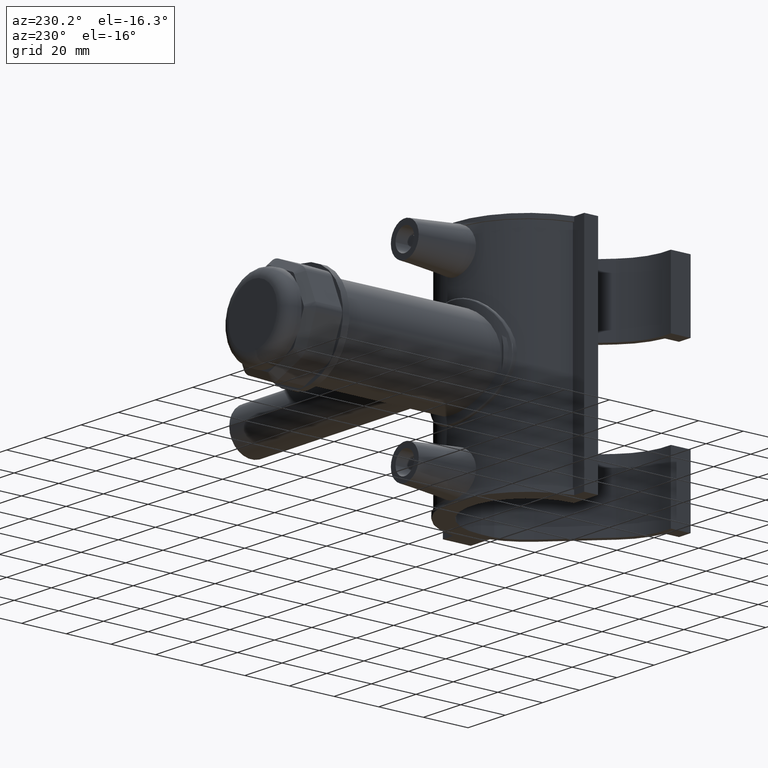
[diagram: clean part render]
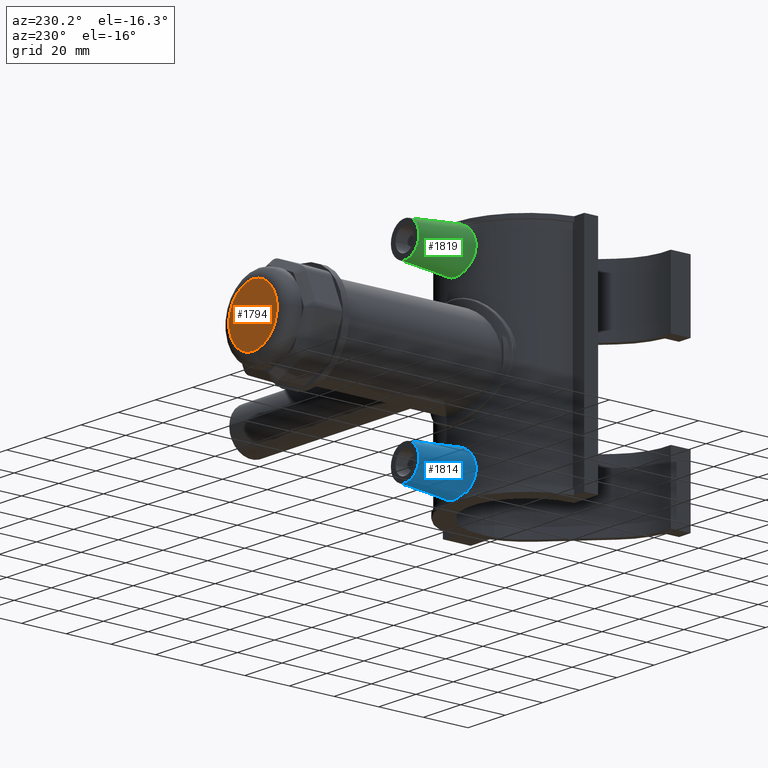
[diagram: same view with three faces highlighted in distinct colors, each labeled with its STEP entity id]
A machine part, auxiliary view with three faces highlighted in distinct colors.
Their STEP definitions:

[orange] entity #1794 — the highlighted planar face has unit normal (0, 1, 0).
#451=FACE_OUTER_BOUND('',#570,.T.);
#570=EDGE_LOOP('',(#1355));
#689=CIRCLE('',#1949,13.);
#811=VERTEX_POINT('',#3066);
#1019=EDGE_CURVE('',#811,#811,#689,.T.);
#1355=ORIENTED_EDGE('',*,*,#1019,.F.);
#1708=PLANE('',#1952);
#1794=ADVANCED_FACE('',(#451),#1708,.T.);
#1949=AXIS2_PLACEMENT_3D('',#3067,#2286,#2287);
#1952=AXIS2_PLACEMENT_3D('',#3070,#2292,#2293);
#2286=DIRECTION('center_axis',(0.,-1.,-3.06161699786838E-16));
#2287=DIRECTION('ref_axis',(6.12323399573677E-17,3.06161699786838E-16,-1.));
#2292=DIRECTION('center_axis',(0.,1.,3.06161699786838E-16));
#2293=DIRECTION('ref_axis',(0.,0.,1.));
#3066=CARTESIAN_POINT('',(-2.38806125833734E-15,123.,13.));
#3067=CARTESIAN_POINT('Origin',(0.,123.,3.00038465791102E-14));
#3070=CARTESIAN_POINT('Origin',(0.,123.,3.00038465791102E-14));

[blue] entity #1814 — the highlighted conical surface has half-angle 5 deg.
#17=(
BOUNDED_CURVE()
B_SPLINE_CURVE(2,(#3316,#3317,#3318),.UNSPECIFIED.,.F.,.F.)
B_SPLINE_CURVE_WITH_KNOTS((3,3),(0.0398167831127246,0.108912894583564),
 .UNSPECIFIED.)
CURVE()
GEOMETRIC_REPRESENTATION_ITEM()
RATIONAL_B_SPLINE_CURVE((1.00004891007162,1.00008159279205,1.00008041755351))
REPRESENTATION_ITEM('')
);
#18=(
BOUNDED_CURVE()
B_SPLINE_CURVE(2,(#3327,#3328,#3329),.UNSPECIFIED.,.F.,.F.)
B_SPLINE_CURVE_WITH_KNOTS((3,3),(0.104116125051706,0.173212236522546),
 .UNSPECIFIED.)
CURVE()
GEOMETRIC_REPRESENTATION_ITEM()
RATIONAL_B_SPLINE_CURVE((1.00008041755351,1.00008159279205,1.00004891007162))
REPRESENTATION_ITEM('')
);
#328=CONICAL_SURFACE('',#1982,7.5,5.);
#342=FACE_BOUND('',#595,.T.);
#371=B_SPLINE_CURVE_WITH_KNOTS('',3,(#3336,#3337,#3338,#3339,#3340,#3341,
#3342,#3343,#3344,#3345),.UNSPECIFIED.,.F.,.F.,(4,2,2,2,4),(3.80240147731351,
3.9501428370638,4.30858013206433,4.66701742706485,4.81475878681515),
 .UNSPECIFIED.);
#372=B_SPLINE_CURVE_WITH_KNOTS('',3,(#3365,#3366,#3367,#3368,#3369,#3370,
#3371,#3372,#3373,#3374,#3375,#3376,#3377,#3378,#3379,#3380,#3381,#3382,
#3383,#3384,#3385,#3386,#3387,#3388),.UNSPECIFIED.,.F.,.F.,(4,2,2,2,2,2,
2,2,2,2,2,4),(0.,0.362047899468712,0.724095798937425,1.08486680070372,1.44563780247002,
1.80640880423631,2.16717980600261,2.52922770547132,2.89127560494004,3.25332350440875,
3.61537140387746,3.81859572748109),.UNSPECIFIED.);
#373=B_SPLINE_CURVE_WITH_KNOTS('',3,(#3389,#3390,#3391,#3392,#3393,#3394,
#3395,#3396),.UNSPECIFIED.,.F.,.F.,(4,2,2,4),(4.85523108733587,5.05845541094265,
5.42050331041136,5.78255120988007),.UNSPECIFIED.);
#471=FACE_OUTER_BOUND('',#594,.T.);
#594=EDGE_LOOP('',(#1451,#1452,#1453,#1454,#1455));
#595=EDGE_LOOP('',(#1456));
#702=CIRCLE('',#1983,7.5);
#821=VERTEX_POINT('',#3314);
#822=VERTEX_POINT('',#3315);
#825=VERTEX_POINT('',#3325);
#826=VERTEX_POINT('',#3326);
#836=VERTEX_POINT('',#3364);
#837=VERTEX_POINT('',#3397);
#1041=EDGE_CURVE('',#821,#822,#17,.T.);
#1045=EDGE_CURVE('',#825,#826,#18,.T.);
#1049=EDGE_CURVE('',#826,#821,#371,.T.);
#1059=EDGE_CURVE('',#836,#822,#372,.T.);
#1060=EDGE_CURVE('',#825,#836,#373,.T.);
#1061=EDGE_CURVE('',#837,#837,#702,.T.);
#1451=ORIENTED_EDGE('',*,*,#1045,.T.);
#1452=ORIENTED_EDGE('',*,*,#1049,.T.);
#1453=ORIENTED_EDGE('',*,*,#1041,.T.);
#1454=ORIENTED_EDGE('',*,*,#1059,.F.);
#1455=ORIENTED_EDGE('',*,*,#1060,.F.);
#1456=ORIENTED_EDGE('',*,*,#1061,.T.);
#1814=ADVANCED_FACE('',(#471,#342),#328,.T.);
#1982=AXIS2_PLACEMENT_3D('',#3363,#2373,#2374);
#1983=AXIS2_PLACEMENT_3D('',#3398,#2375,#2376);
#2373=DIRECTION('center_axis',(0.,-1.,0.));
#2374=DIRECTION('ref_axis',(1.,0.,0.));
#2375=DIRECTION('center_axis',(0.,-1.,0.));
#2376=DIRECTION('ref_axis',(1.,0.,0.));
#3314=CARTESIAN_POINT('',(-5.02092243298948,32.7675577045636,-48.));
#3315=CARTESIAN_POINT('',(-5.13117896250066,32.0923823119255,-48.));
#3316=CARTESIAN_POINT('Ctrl Pts',(-5.02092243298948,32.7675577045636,-48.));
#3317=CARTESIAN_POINT('Ctrl Pts',(-5.0758788472321,32.4336363671915,-48.));
#3318=CARTESIAN_POINT('Ctrl Pts',(-5.13117896250066,32.0923823119255,-48.));
#3325=CARTESIAN_POINT('',(5.13117896250066,32.0923823119255,-48.));
#3326=CARTESIAN_POINT('',(5.02092243298948,32.7675577045636,-48.));
#3327=CARTESIAN_POINT('Ctrl Pts',(5.13117896250066,32.0923823119255,-48.));
#3328=CARTESIAN_POINT('Ctrl Pts',(5.07587884723165,32.4336363671944,-48.));
#3329=CARTESIAN_POINT('Ctrl Pts',(5.02092243298948,32.7675577045636,-48.));
#3336=CARTESIAN_POINT('Ctrl Pts',(5.02092243298948,32.7675577045636,-48.));
#3337=CARTESIAN_POINT('Ctrl Pts',(4.58214950446323,32.8347902050657,-48.2684360086521));
#3338=CARTESIAN_POINT('Ctrl Pts',(4.11687674288014,32.8969405100926,-48.5039883418409));
#3339=CARTESIAN_POINT('Ctrl Pts',(2.46648320527563,33.0790175940415,-49.1762993128722));
#3340=CARTESIAN_POINT('Ctrl Pts',(1.19479098333509,33.15,-49.4116272980414));
#3341=CARTESIAN_POINT('Ctrl Pts',(-1.19479098333509,33.15,-49.4116272980414));
#3342=CARTESIAN_POINT('Ctrl Pts',(-2.46648320527563,33.0790175940415,-49.1762993128723));
#3343=CARTESIAN_POINT('Ctrl Pts',(-4.11687674288014,32.8969405100927,-48.5039883418409));
#3344=CARTESIAN_POINT('Ctrl Pts',(-4.58214950446323,32.8347902050657,-48.2684360086521));
#3345=CARTESIAN_POINT('Ctrl Pts',(-5.02092243298948,32.7675577045636,-48.));
#3363=CARTESIAN_POINT('Origin',(0.,55.,-40.));
#3364=CARTESIAN_POINT('',(9.59524244594183,31.0512692559193,-40.));
#3365=CARTESIAN_POINT('Ctrl Pts',(9.59524244594183,31.0512692559193,-40.));
#3366=CARTESIAN_POINT('Ctrl Pts',(9.59524244594183,31.0512692559193,-38.7931736684376));
#3367=CARTESIAN_POINT('Ctrl Pts',(9.3470231898562,31.1311666751305,-37.5134816777897));
#3368=CARTESIAN_POINT('Ctrl Pts',(8.35380569471185,31.412263489831,-35.1737633631997));
#3369=CARTESIAN_POINT('Ctrl Pts',(7.60928976109968,31.6086786532308,-34.1129600502947));
#3370=CARTESIAN_POINT('Ctrl Pts',(5.90699332981886,31.9704853933175,-32.446684726768));
#3371=CARTESIAN_POINT('Ctrl Pts',(4.83429941664471,32.1602272677186,-31.7260732041943));
#3372=CARTESIAN_POINT('Ctrl Pts',(2.48234605122766,32.4266653583976,-30.76831513355));
#3373=CARTESIAN_POINT('Ctrl Pts',(1.20257000588766,32.5,-30.5315050706667));
#3374=CARTESIAN_POINT('Ctrl Pts',(-1.20257000588765,32.5,-30.5315050706667));
#3375=CARTESIAN_POINT('Ctrl Pts',(-2.48234605122766,32.4266653583976,-30.76831513355));
#3376=CARTESIAN_POINT('Ctrl Pts',(-4.83429941664471,32.1602272677186,-31.7260732041943));
#3377=CARTESIAN_POINT('Ctrl Pts',(-5.90699332981886,31.9704853933175,-32.446684726768));
#3378=CARTESIAN_POINT('Ctrl Pts',(-7.60928976109968,31.6086786532308,-34.1129600502947));
#3379=CARTESIAN_POINT('Ctrl Pts',(-8.35380569471185,31.412263489831,-35.1737633631997));
#3380=CARTESIAN_POINT('Ctrl Pts',(-9.3470231898562,31.1311666751305,-37.5134816777897));
#3381=CARTESIAN_POINT('Ctrl Pts',(-9.59524244594183,31.0512692559193,-38.7931736684376));
#3382=CARTESIAN_POINT('Ctrl Pts',(-9.59524244594183,31.0512692559193,-41.2068263315624));
#3383=CARTESIAN_POINT('Ctrl Pts',(-9.3470231898562,31.1311666751305,-42.4865183222104));
#3384=CARTESIAN_POINT('Ctrl Pts',(-8.35380569471185,31.412263489831,-44.8262366368003));
#3385=CARTESIAN_POINT('Ctrl Pts',(-7.60928976109968,31.6086786532308,-45.8870399497053));
#3386=CARTESIAN_POINT('Ctrl Pts',(-6.27802838097515,31.8916254604351,-47.1901314360668));
#3387=CARTESIAN_POINT('Ctrl Pts',(-5.73018665567346,31.9966083165979,-47.6257526220462));
#3388=CARTESIAN_POINT('Ctrl Pts',(-5.13117896251543,32.0923823119232,-47.9999999999908));
#3389=CARTESIAN_POINT('Ctrl Pts',(5.13117896248757,32.0923823119276,-48.0000000000082));
#3390=CARTESIAN_POINT('Ctrl Pts',(5.73018665565645,31.9966083166012,-47.6257526220596));
#3391=CARTESIAN_POINT('Ctrl Pts',(6.27802838096772,31.8916254604366,-47.1901314360741));
#3392=CARTESIAN_POINT('Ctrl Pts',(7.60928976109968,31.6086786532308,-45.8870399497053));
#3393=CARTESIAN_POINT('Ctrl Pts',(8.35380569471185,31.412263489831,-44.8262366368003));
#3394=CARTESIAN_POINT('Ctrl Pts',(9.3470231898562,31.1311666751305,-42.4865183222104));
#3395=CARTESIAN_POINT('Ctrl Pts',(9.59524244594183,31.0512692559193,-41.2068263315624));
#3396=CARTESIAN_POINT('Ctrl Pts',(9.59524244594183,31.0512692559193,-40.));
#3397=CARTESIAN_POINT('',(-7.5,55.,-40.));
#3398=CARTESIAN_POINT('Origin',(0.,55.,-40.));

[green] entity #1819 — the highlighted conical surface has half-angle 5 deg.
#19=(
BOUNDED_CURVE()
B_SPLINE_CURVE(2,(#3402,#3403,#3404),.UNSPECIFIED.,.F.,.F.)
B_SPLINE_CURVE_WITH_KNOTS((3,3),(0.0398167831126664,0.108912894583584),
 .UNSPECIFIED.)
CURVE()
GEOMETRIC_REPRESENTATION_ITEM()
RATIONAL_B_SPLINE_CURVE((1.00004891007262,1.00008159279373,1.00008041755517))
REPRESENTATION_ITEM('')
);
#20=(
BOUNDED_CURVE()
B_SPLINE_CURVE(2,(#3410,#3411,#3412),.UNSPECIFIED.,.F.,.F.)
B_SPLINE_CURVE_WITH_KNOTS((3,3),(0.104116125051685,0.173212236522602),
 .UNSPECIFIED.)
CURVE()
GEOMETRIC_REPRESENTATION_ITEM()
RATIONAL_B_SPLINE_CURVE((1.00008041755517,1.00008159279373,1.00004891007262))
REPRESENTATION_ITEM('')
);
#329=CONICAL_SURFACE('',#1993,7.5,5.);
#343=FACE_BOUND('',#601,.T.);
#374=B_SPLINE_CURVE_WITH_KNOTS('',3,(#3419,#3420,#3421,#3422,#3423,#3424,
#3425,#3426,#3427,#3428),.UNSPECIFIED.,.F.,.F.,(4,2,2,2,4),(3.80240147731351,
3.9501428370638,4.30858013206433,4.66701742706485,4.81475878681515),
 .UNSPECIFIED.);
#375=B_SPLINE_CURVE_WITH_KNOTS('',3,(#3441,#3442,#3443,#3444,#3445,#3446,
#3447,#3448),.UNSPECIFIED.,.F.,.F.,(4,2,2,4),(2.89127560494004,3.25332350440875,
3.61537140387746,3.81859572748109),.UNSPECIFIED.);
#376=B_SPLINE_CURVE_WITH_KNOTS('',3,(#3449,#3450,#3451,#3452,#3453,#3454,
#3455,#3456,#3457,#3458,#3459,#3460,#3461,#3462,#3463,#3464,#3465,#3466,
#3467,#3468,#3469,#3470,#3471,#3472,#3473),.UNSPECIFIED.,.F.,.F.,(4,2,2,
3,2,2,2,2,2,2,2,4),(4.85523108733587,5.05845541094265,5.42050331041136,
5.78255120988007,6.14459910934878,6.5066470088175,6.86741801058379,7.22818901235009,
7.58896001411639,7.94973101588268,8.3117789153514,8.67382681482011),
 .UNSPECIFIED.);
#476=FACE_OUTER_BOUND('',#600,.T.);
#600=EDGE_LOOP('',(#1479,#1480,#1481,#1482,#1483));
#601=EDGE_LOOP('',(#1484));
#708=CIRCLE('',#1994,7.5);
#838=VERTEX_POINT('',#3400);
#839=VERTEX_POINT('',#3401);
#840=VERTEX_POINT('',#3408);
#841=VERTEX_POINT('',#3409);
#847=VERTEX_POINT('',#3440);
#848=VERTEX_POINT('',#3474);
#1062=EDGE_CURVE('',#838,#839,#19,.T.);
#1065=EDGE_CURVE('',#840,#841,#20,.T.);
#1069=EDGE_CURVE('',#841,#838,#374,.T.);
#1076=EDGE_CURVE('',#847,#839,#375,.T.);
#1077=EDGE_CURVE('',#840,#847,#376,.T.);
#1078=EDGE_CURVE('',#848,#848,#708,.T.);
#1479=ORIENTED_EDGE('',*,*,#1065,.T.);
#1480=ORIENTED_EDGE('',*,*,#1069,.T.);
#1481=ORIENTED_EDGE('',*,*,#1062,.T.);
#1482=ORIENTED_EDGE('',*,*,#1076,.F.);
#1483=ORIENTED_EDGE('',*,*,#1077,.F.);
#1484=ORIENTED_EDGE('',*,*,#1078,.F.);
#1819=ADVANCED_FACE('',(#476,#343),#329,.T.);
#1993=AXIS2_PLACEMENT_3D('',#3439,#2401,#2402);
#1994=AXIS2_PLACEMENT_3D('',#3475,#2403,#2404);
#2401=DIRECTION('center_axis',(0.,-1.,0.));
#2402=DIRECTION('ref_axis',(1.,0.,0.));
#2403=DIRECTION('center_axis',(0.,1.,0.));
#2404=DIRECTION('ref_axis',(1.,0.,0.));
#3400=CARTESIAN_POINT('',(5.02092243298948,32.7675577045636,48.));
#3401=CARTESIAN_POINT('',(5.13117896250066,32.0923823119255,48.));
#3402=CARTESIAN_POINT('Ctrl Pts',(5.02092243298948,32.7675577045636,48.));
#3403=CARTESIAN_POINT('Ctrl Pts',(5.07587884723213,32.4336363671914,48.));
#3404=CARTESIAN_POINT('Ctrl Pts',(5.13117896250066,32.0923823119255,48.));
#3408=CARTESIAN_POINT('',(-5.13117896250066,32.0923823119255,48.));
#3409=CARTESIAN_POINT('',(-5.02092243298948,32.7675577045636,48.));
#3410=CARTESIAN_POINT('Ctrl Pts',(-5.13117896250066,32.0923823119255,48.));
#3411=CARTESIAN_POINT('Ctrl Pts',(-5.07587884723168,32.4336363671942,48.));
#3412=CARTESIAN_POINT('Ctrl Pts',(-5.02092243298948,32.7675577045636,48.));
#3419=CARTESIAN_POINT('Ctrl Pts',(-5.02092243298948,32.7675577045636,48.));
#3420=CARTESIAN_POINT('Ctrl Pts',(-4.58214950446323,32.8347902050657,48.2684360086521));
#3421=CARTESIAN_POINT('Ctrl Pts',(-4.11687674288014,32.8969405100926,48.5039883418409));
#3422=CARTESIAN_POINT('Ctrl Pts',(-2.46648320527564,33.0790175940415,49.1762993128723));
#3423=CARTESIAN_POINT('Ctrl Pts',(-1.19479098333509,33.15,49.4116272980414));
#3424=CARTESIAN_POINT('Ctrl Pts',(1.19479098333508,33.15,49.4116272980414));
#3425=CARTESIAN_POINT('Ctrl Pts',(2.46648320527563,33.0790175940415,49.1762993128723));
#3426=CARTESIAN_POINT('Ctrl Pts',(4.11687674288014,32.8969405100926,48.5039883418409));
#3427=CARTESIAN_POINT('Ctrl Pts',(4.58214950446323,32.8347902050657,48.2684360086521));
#3428=CARTESIAN_POINT('Ctrl Pts',(5.02092243298948,32.7675577045636,48.));
#3439=CARTESIAN_POINT('Origin',(0.,55.,40.));
#3440=CARTESIAN_POINT('',(9.59524244594183,31.0512692559193,40.));
#3441=CARTESIAN_POINT('Ctrl Pts',(9.59524244594183,31.0512692559193,40.));
#3442=CARTESIAN_POINT('Ctrl Pts',(9.59524244594183,31.0512692559193,41.2068263315624));
#3443=CARTESIAN_POINT('Ctrl Pts',(9.3470231898562,31.1311666751305,42.4865183222104));
#3444=CARTESIAN_POINT('Ctrl Pts',(8.35380569471185,31.412263489831,44.8262366368003));
#3445=CARTESIAN_POINT('Ctrl Pts',(7.60928976109968,31.6086786532308,45.8870399497053));
#3446=CARTESIAN_POINT('Ctrl Pts',(6.27802838097515,31.8916254604351,47.1901314360668));
#3447=CARTESIAN_POINT('Ctrl Pts',(5.73018665567347,31.9966083165979,47.6257526220462));
#3448=CARTESIAN_POINT('Ctrl Pts',(5.13117896251544,32.0923823119232,47.9999999999908));
#3449=CARTESIAN_POINT('Ctrl Pts',(-5.13117896248756,32.0923823119276,48.0000000000082));
#3450=CARTESIAN_POINT('Ctrl Pts',(-5.73018665565644,31.9966083166012,47.6257526220596));
#3451=CARTESIAN_POINT('Ctrl Pts',(-6.27802838096772,31.8916254604366,47.1901314360741));
#3452=CARTESIAN_POINT('Ctrl Pts',(-7.60928976109968,31.6086786532308,45.8870399497053));
#3453=CARTESIAN_POINT('Ctrl Pts',(-8.35380569471185,31.412263489831,44.8262366368003));
#3454=CARTESIAN_POINT('Ctrl Pts',(-9.3470231898562,31.1311666751305,42.4865183222104));
#3455=CARTESIAN_POINT('Ctrl Pts',(-9.59524244594183,31.0512692559193,41.2068263315624));
#3456=CARTESIAN_POINT('Ctrl Pts',(-9.59524244594183,31.0512692559193,40.));
#3457=CARTESIAN_POINT('Ctrl Pts',(-9.59524244594183,31.0512692559193,38.7931736684376));
#3458=CARTESIAN_POINT('Ctrl Pts',(-9.3470231898562,31.1311666751305,37.5134816777897));
#3459=CARTESIAN_POINT('Ctrl Pts',(-8.35380569471185,31.412263489831,35.1737633631997));
#3460=CARTESIAN_POINT('Ctrl Pts',(-7.60928976109968,31.6086786532308,34.1129600502947));
#3461=CARTESIAN_POINT('Ctrl Pts',(-5.90699332981886,31.9704853933175,32.446684726768));
#3462=CARTESIAN_POINT('Ctrl Pts',(-4.83429941664471,32.1602272677186,31.7260732041943));
#3463=CARTESIAN_POINT('Ctrl Pts',(-2.48234605122766,32.4266653583976,30.76831513355));
#3464=CARTESIAN_POINT('Ctrl Pts',(-1.20257000588765,32.5,30.5315050706667));
#3465=CARTESIAN_POINT('Ctrl Pts',(1.20257000588766,32.5,30.5315050706667));
#3466=CARTESIAN_POINT('Ctrl Pts',(2.48234605122766,32.4266653583976,30.76831513355));
#3467=CARTESIAN_POINT('Ctrl Pts',(4.83429941664471,32.1602272677186,31.7260732041943));
#3468=CARTESIAN_POINT('Ctrl Pts',(5.90699332981886,31.9704853933175,32.446684726768));
#3469=CARTESIAN_POINT('Ctrl Pts',(7.60928976109968,31.6086786532308,34.1129600502947));
#3470=CARTESIAN_POINT('Ctrl Pts',(8.35380569471185,31.412263489831,35.1737633631997));
#3471=CARTESIAN_POINT('Ctrl Pts',(9.3470231898562,31.1311666751305,37.5134816777897));
#3472=CARTESIAN_POINT('Ctrl Pts',(9.59524244594183,31.0512692559193,38.7931736684376));
#3473=CARTESIAN_POINT('Ctrl Pts',(9.59524244594183,31.0512692559193,40.));
#3474=CARTESIAN_POINT('',(-7.5,55.,40.));
#3475=CARTESIAN_POINT('Origin',(0.,55.,40.));